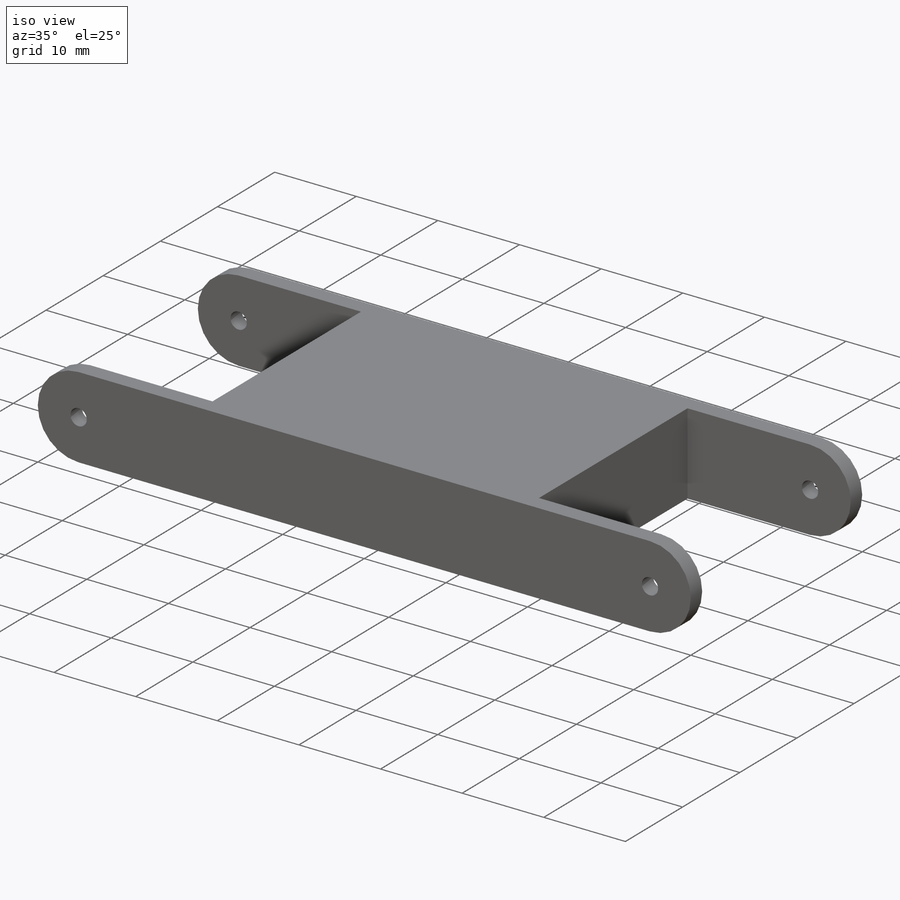
[diagram: iso view]
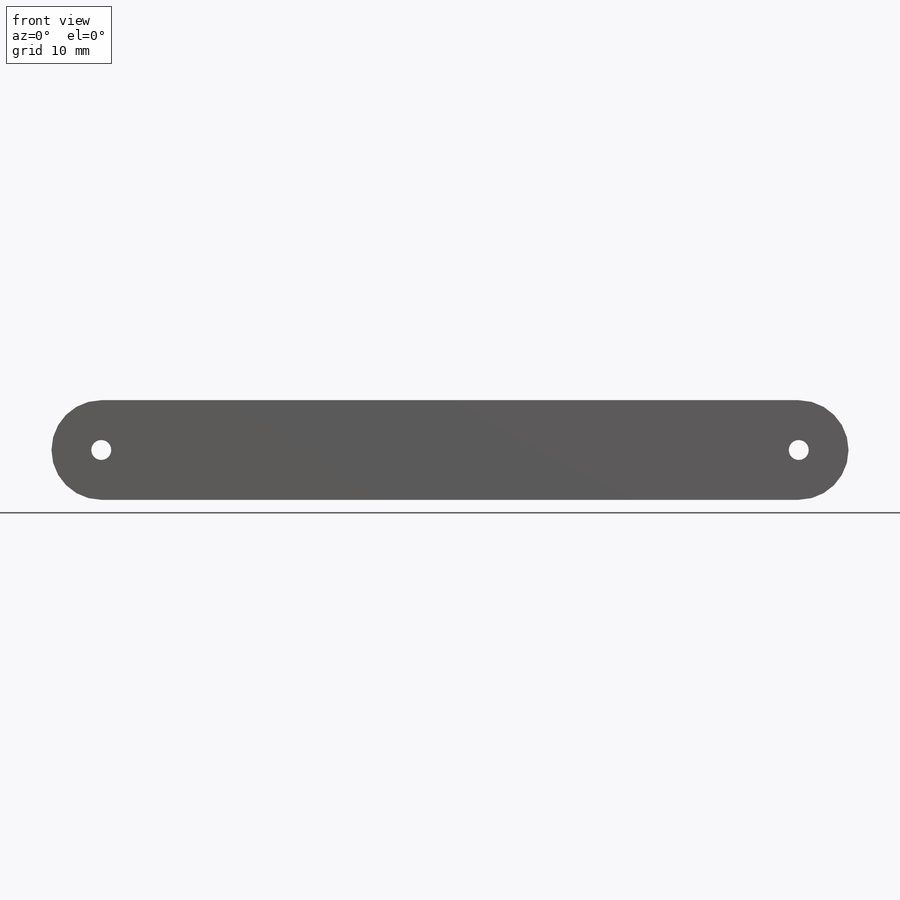
[diagram: front view]
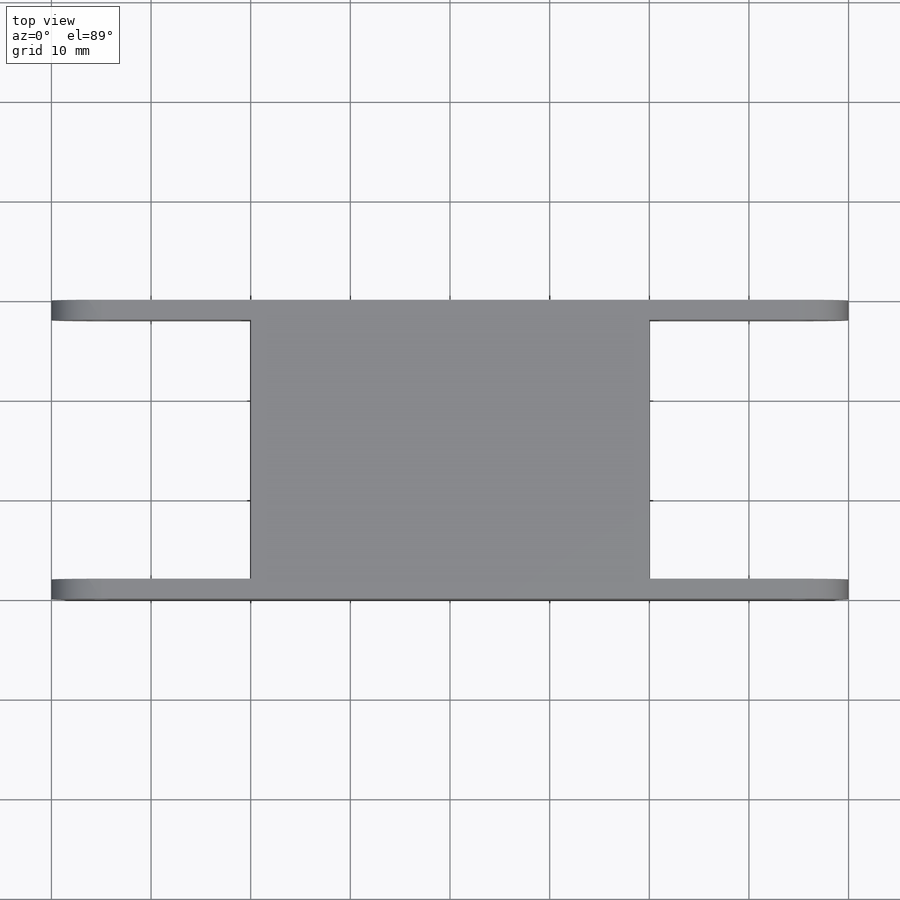
[diagram: top view]
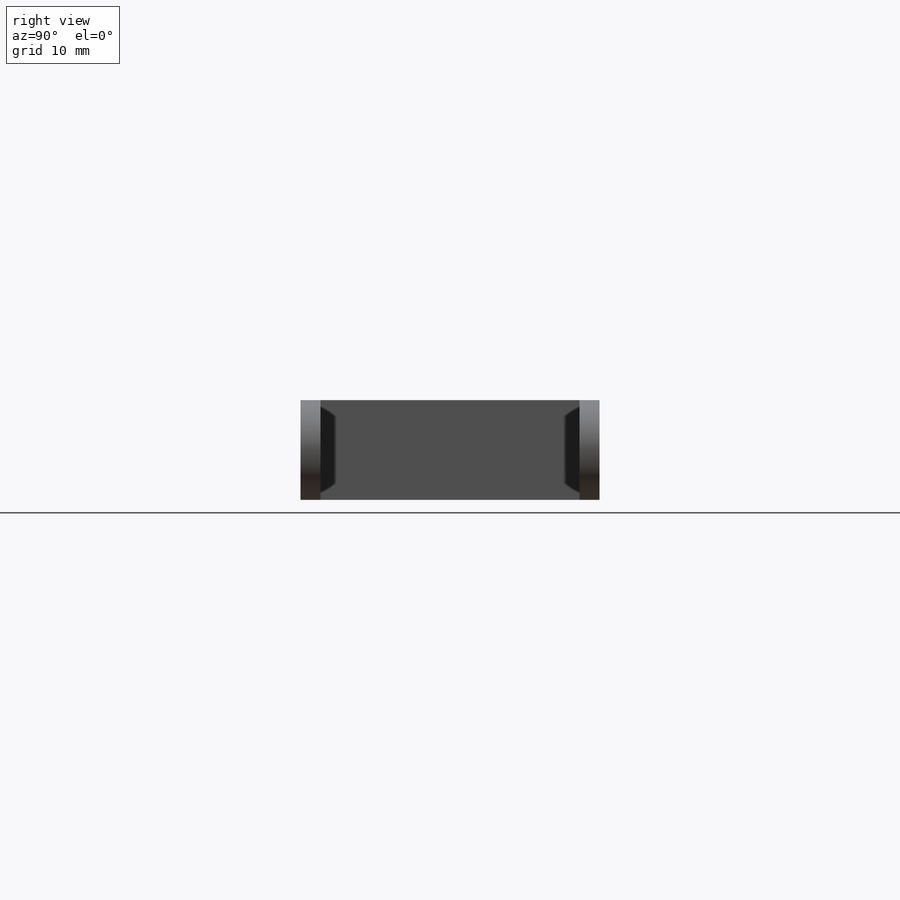
[diagram: right view]
SOLIDWORKS PART (.sldprt)
format: sldprt  version: not decoded by parser v0  size: 166,400 bytes
history: native  units: mm
features: plane x3, sketch x3, cut_extrude x2, material x1, extrude x1 (+10 scaffold rows collapsed)
feature tree (20):
  scaffold x10  (default folders/planes/origin — collapsed)
  material  "材質 <未指定>"
  plane  "前基準面"
  plane  "上基準面"
  plane  "右基準面"
  sketch  "草圖1"  dims[D2=5.0mm D1=70.0mm]
  extrude  "填料-伸長1"  Depth=30mm
  sketch  "草圖2"  dims[D1=2.0mm]
  cut_extrude  "除料-伸長4"  Depth=30mm
  sketch  "草圖3"  dims[D1=20.0mm D2=26.0mm D3=2.0mm D4=15.0mm]
  cut_extrude  "除料-伸長5"  Depth=30mm
decode coverage: 6 of 6 modeling features carry decoded parameters
note: suppression state not decoded; provenance and decode notes live in map.json
